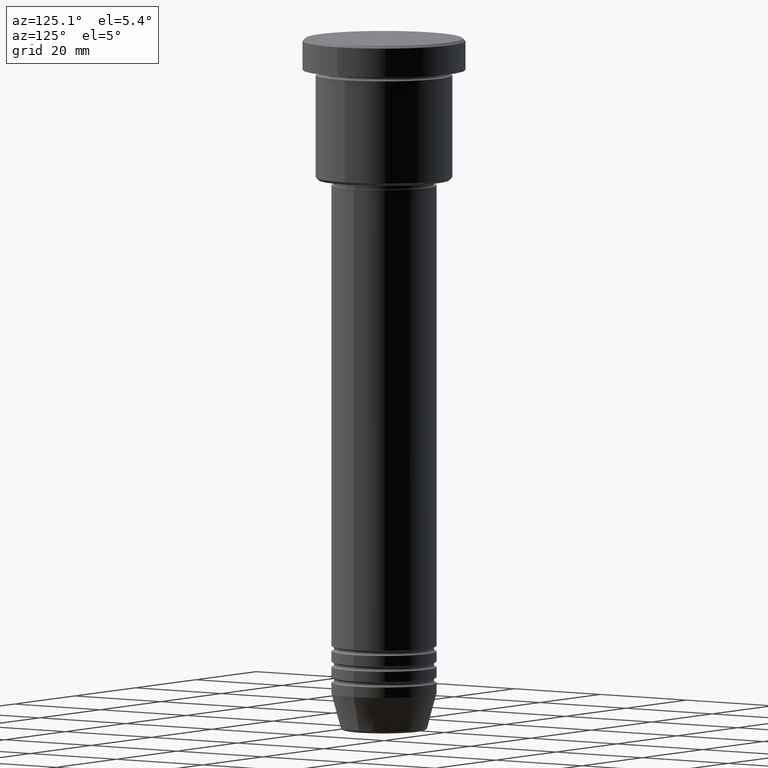
[diagram: clean part render]
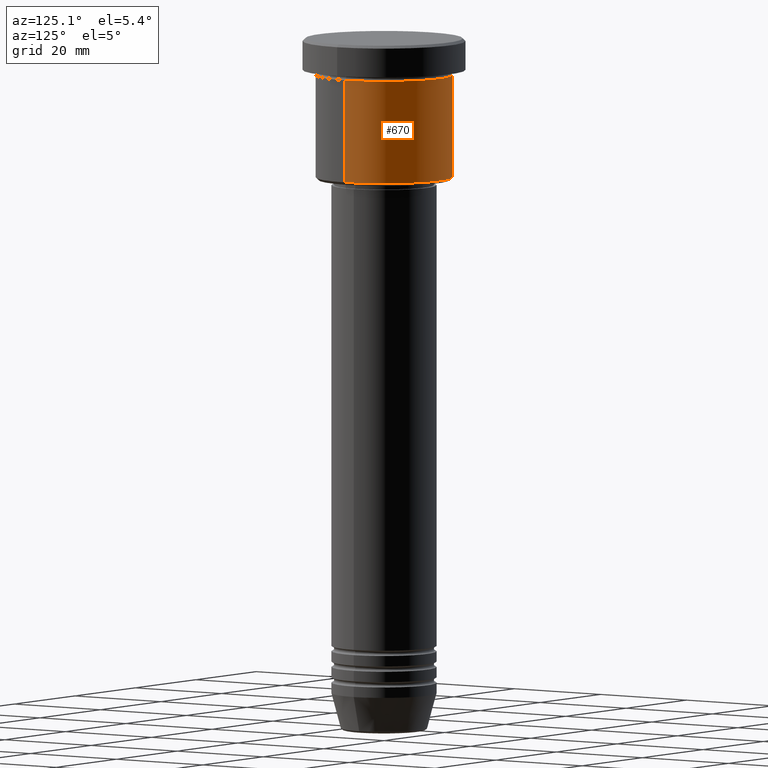
[diagram: same view with one face highlighted and labeled with its STEP entity id]
A machine part, auxiliary view. The second image highlights one B-rep face of the part: STEP entity #670.
In plain terms, the highlighted cylindrical surface (partial cylindrical patch) has radius 13 mm, axis along (-0, -0, 1).
Its self-contained STEP definition (entity closure, byte-faithful):
#35 = FACE_OUTER_BOUND ( 'NONE', #409, .T. ) ;
#40 = VERTEX_POINT ( 'NONE', #121 ) ;
#70 = CYLINDRICAL_SURFACE ( 'NONE', #948, 13.00000000000000000 ) ;
#103 = DIRECTION ( 'NONE',  ( -1.000000000000000000, 0.000000000000000000, 0.000000000000000000 ) ) ;
#121 = CARTESIAN_POINT ( 'NONE',  ( -13.00000000000000000, 1.592040838891559095E-15, -26.49999999999997513 ) ) ;
#131 = CARTESIAN_POINT ( 'NONE',  ( 13.00000000000000000, 0.000000000000000000, -6.999999999999995559 ) ) ;
#181 = AXIS2_PLACEMENT_3D ( 'NONE', #743, #479, #103 ) ;
#250 = VERTEX_POINT ( 'NONE', #1029 ) ;
#263 = DIRECTION ( 'NONE',  ( -0.000000000000000000, -0.000000000000000000, 1.000000000000000000 ) ) ;
#283 = ORIENTED_EDGE ( 'NONE', *, *, #1105, .F. ) ;
#320 = EDGE_CURVE ( 'NONE', #40, #250, #869, .T. ) ;
#322 = DIRECTION ( 'NONE',  ( 1.000000000000000000, 0.000000000000000000, 0.000000000000000000 ) ) ;
#353 = VECTOR ( 'NONE', #263, 1000.000000000000000 ) ;
#373 = DIRECTION ( 'NONE',  ( -0.000000000000000000, -0.000000000000000000, 1.000000000000000000 ) ) ;
#391 = CIRCLE ( 'NONE', #1073, 13.00000000000000000 ) ;
#409 = EDGE_LOOP ( 'NONE', ( #870, #1176, #283, #974 ) ) ;
#451 = VERTEX_POINT ( 'NONE', #131 ) ;
#456 = EDGE_CURVE ( 'NONE', #758, #451, #878, .T. ) ;
#462 = CIRCLE ( 'NONE', #181, 13.00000000000000000 ) ;
#479 = DIRECTION ( 'NONE',  ( -0.000000000000000000, -0.000000000000000000, 1.000000000000000000 ) ) ;
#509 = VECTOR ( 'NONE', #373, 1000.000000000000000 ) ;
#534 = CARTESIAN_POINT ( 'NONE',  ( 13.00000000000000000, 0.000000000000000000, -26.49999999999997513 ) ) ;
#635 = CARTESIAN_POINT ( 'NONE',  ( 0.000000000000000000, 0.000000000000000000, 0.000000000000000000 ) ) ;
#645 = DIRECTION ( 'NONE',  ( 1.000000000000000000, 0.000000000000000000, 0.000000000000000000 ) ) ;
#670 = ADVANCED_FACE ( 'NONE', ( #35 ), #70, .T. ) ;
#731 = CARTESIAN_POINT ( 'NONE',  ( 13.00000000000000000, 0.000000000000000000, 0.000000000000000000 ) ) ;
#743 = CARTESIAN_POINT ( 'NONE',  ( 0.000000000000000000, 0.000000000000000000, -26.49999999999997513 ) ) ;
#758 = VERTEX_POINT ( 'NONE', #534 ) ;
#814 = CARTESIAN_POINT ( 'NONE',  ( -13.00000000000000000, 1.592040838891559095E-15, 0.000000000000000000 ) ) ;
#869 = LINE ( 'NONE', #814, #353 ) ;
#870 = ORIENTED_EDGE ( 'NONE', *, *, #935, .T. ) ;
#878 = LINE ( 'NONE', #731, #509 ) ;
#935 = EDGE_CURVE ( 'NONE', #758, #40, #462, .T. ) ;
#944 = CARTESIAN_POINT ( 'NONE',  ( 0.000000000000000000, 0.000000000000000000, -6.999999999999995559 ) ) ;
#948 = AXIS2_PLACEMENT_3D ( 'NONE', #635, #1164, #645 ) ;
#969 = DIRECTION ( 'NONE',  ( -0.000000000000000000, -0.000000000000000000, 1.000000000000000000 ) ) ;
#974 = ORIENTED_EDGE ( 'NONE', *, *, #456, .F. ) ;
#1029 = CARTESIAN_POINT ( 'NONE',  ( -13.00000000000000000, 1.592040838891559095E-15, -6.999999999999995559 ) ) ;
#1073 = AXIS2_PLACEMENT_3D ( 'NONE', #944, #969, #322 ) ;
#1105 = EDGE_CURVE ( 'NONE', #451, #250, #391, .T. ) ;
#1164 = DIRECTION ( 'NONE',  ( -0.000000000000000000, -0.000000000000000000, 1.000000000000000000 ) ) ;
#1176 = ORIENTED_EDGE ( 'NONE', *, *, #320, .T. ) ;